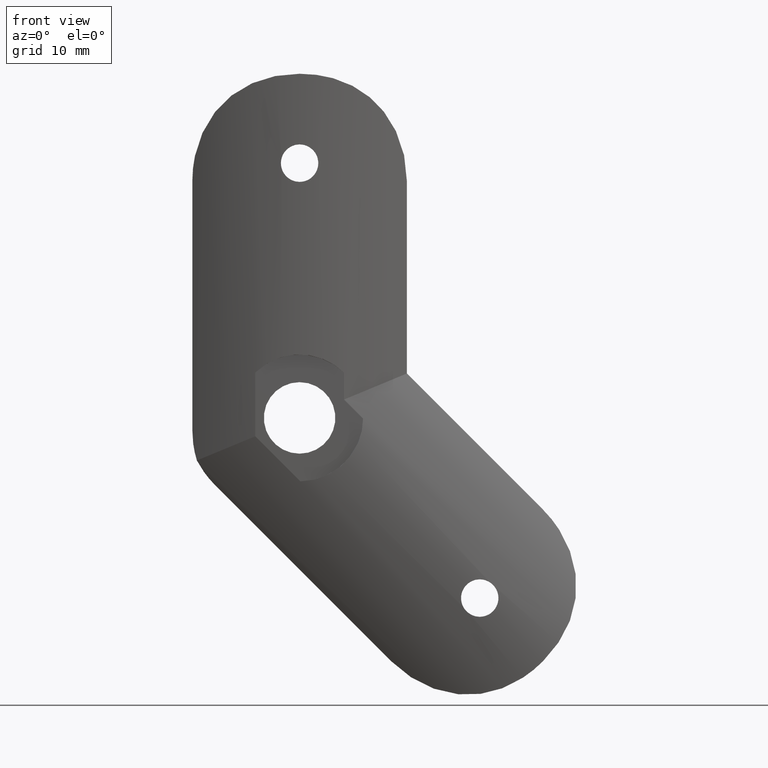
[diagram: clean part render]
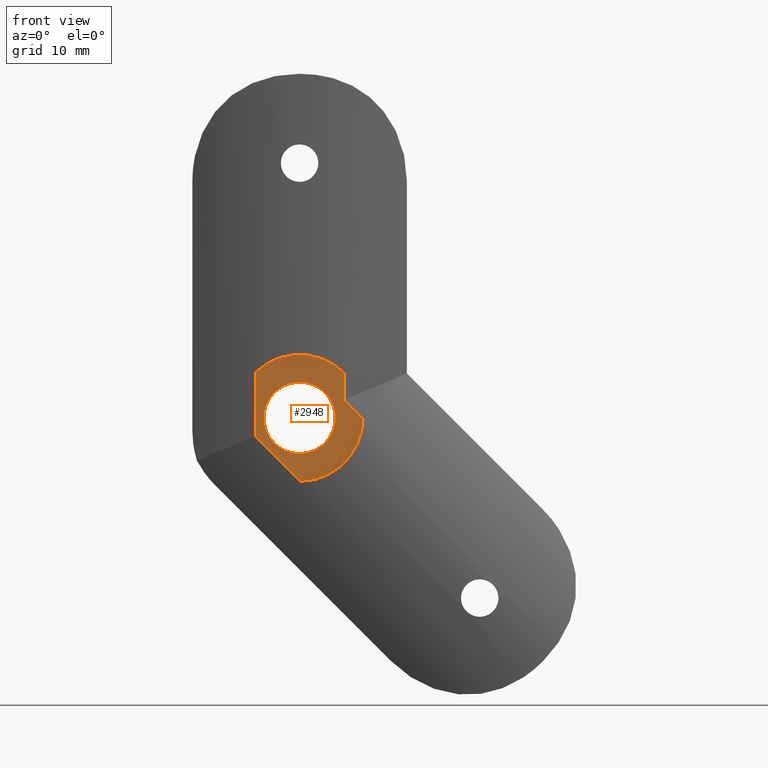
[diagram: same view with one face highlighted and labeled with its STEP entity id]
A machine part, front view. The second image highlights one B-rep face of the part: STEP entity #2948.
In plain terms, the highlighted planar face has unit normal (0, -1, -0).
Its self-contained STEP definition (entity closure, byte-faithful):
#208 = CARTESIAN_POINT ( 'NONE',  ( 0.0000000000000000000, 0.5000000000000004400, 0.0000000000000000000 ) ) ;
#250 = DIRECTION ( 'NONE',  ( 0.0000000000000000000, 0.0000000000000000000, -1.000000000000000000 ) ) ;
#289 = CARTESIAN_POINT ( 'NONE',  ( -4.964876634922575200, 0.5000000000000004400, -24.81928916848295000 ) ) ;
#397 = CARTESIAN_POINT ( 'NONE',  ( 7.099569625293663800, 0.5000000000000000000, -0.07817375267685786100 ) ) ;
#480 = CARTESIAN_POINT ( 'NONE',  ( 4.964876634922571700, 0.5000000000000004400, 2.056519237694225000 ) ) ;
#514 = CARTESIAN_POINT ( 'NONE',  ( 0.07817375267687955200, 0.5000000000000000000, -7.099569625293663800 ) ) ;
#881 = VERTEX_POINT ( 'NONE', #514 ) ;
#1272 = PLANE ( 'NONE',  #2369 ) ;
#1356 = DIRECTION ( 'NONE',  ( 1.224646799147353500E-016, -0.0000000000000000000, 1.000000000000000000 ) ) ;
#1366 = CARTESIAN_POINT ( 'NONE',  ( -4.964876634922572600, 0.5000000000000004400, -2.056519237694228500 ) ) ;
#1733 = ORIENTED_EDGE ( 'NONE', *, *, #7509, .T. ) ;
#1750 = DIRECTION ( 'NONE',  ( 0.0000000000000000000, 0.0000000000000000000, -1.000000000000000000 ) ) ;
#1866 = ORIENTED_EDGE ( 'NONE', *, *, #8109, .F. ) ;
#1871 = ORIENTED_EDGE ( 'NONE', *, *, #9411, .F. ) ;
#1929 = DIRECTION ( 'NONE',  ( -0.7071067811865486800, -0.0000000000000000000, 0.7071067811865464600 ) ) ;
#1954 = AXIS2_PLACEMENT_3D ( 'NONE', #13451, #11382, #5164 ) ;
#1966 = DIRECTION ( 'NONE',  ( -1.224646799147353500E-016, 0.0000000000000000000, -1.000000000000000000 ) ) ;
#2129 = VECTOR ( 'NONE', #1966, 1000.000000000000000 ) ;
#2369 = AXIS2_PLACEMENT_3D ( 'NONE', #11666, #11807, #250 ) ;
#2431 = VECTOR ( 'NONE', #1929, 999.9999999999998900 ) ;
#2604 = ORIENTED_EDGE ( 'NONE', *, *, #7489, .F. ) ;
#2777 = AXIS2_PLACEMENT_3D ( 'NONE', #3360, #7572, #10619 ) ;
#2910 = EDGE_CURVE ( 'NONE', #4969, #9949, #10761, .T. ) ;
#2920 = VERTEX_POINT ( 'NONE', #397 ) ;
#2948 = ADVANCED_FACE ( 'NONE', ( #13011, #11091 ), #1272, .T. ) ;
#3360 = CARTESIAN_POINT ( 'NONE',  ( 0.0000000000000000000, 0.5000000000000000000, 0.0000000000000000000 ) ) ;
#3546 = CARTESIAN_POINT ( 'NONE',  ( 0.0000000000000000000, 0.5000000000000004400, -4.000000000000000000 ) ) ;
#3584 = CARTESIAN_POINT ( 'NONE',  ( -4.964876634922570800, 0.5000000000000000000, 5.075431016179800600 ) ) ;
#3795 = CIRCLE ( 'NONE', #11486, 4.000000000000000000 ) ;
#3889 = ORIENTED_EDGE ( 'NONE', *, *, #11508, .T. ) ;
#3932 = VERTEX_POINT ( 'NONE', #1366 ) ;
#4731 = VERTEX_POINT ( 'NONE', #10222 ) ;
#4742 = LINE ( 'NONE', #289, #7723 ) ;
#4793 = DIRECTION ( 'NONE',  ( -0.0000000000000000000, -1.000000000000000000, -0.0000000000000000000 ) ) ;
#4890 = LINE ( 'NONE', #8313, #2129 ) ;
#4969 = VERTEX_POINT ( 'NONE', #3546 ) ;
#5164 = DIRECTION ( 'NONE',  ( 0.0000000000000000000, 0.0000000000000000000, -1.000000000000000000 ) ) ;
#5943 = CARTESIAN_POINT ( 'NONE',  ( -3.510697936308392100, 0.5000000000000004400, -3.510697936308402800 ) ) ;
#6076 = CARTESIAN_POINT ( 'NONE',  ( 3.510697936308392100, 0.5000000000000004400, 3.510697936308402800 ) ) ;
#6327 = ORIENTED_EDGE ( 'NONE', *, *, #2910, .F. ) ;
#6481 = DIRECTION ( 'NONE',  ( 0.0000000000000000000, 0.0000000000000000000, -1.000000000000000000 ) ) ;
#7099 = ORIENTED_EDGE ( 'NONE', *, *, #11338, .T. ) ;
#7175 = EDGE_LOOP ( 'NONE', ( #6327, #2604 ) ) ;
#7404 = LINE ( 'NONE', #5943, #13347 ) ;
#7489 = EDGE_CURVE ( 'NONE', #9949, #4969, #3795, .T. ) ;
#7509 = EDGE_CURVE ( 'NONE', #3932, #881, #7404, .T. ) ;
#7572 = DIRECTION ( 'NONE',  ( -0.0000000000000000000, -1.000000000000000000, -0.0000000000000000000 ) ) ;
#7723 = VECTOR ( 'NONE', #1356, 1000.000000000000000 ) ;
#7779 = VERTEX_POINT ( 'NONE', #480 ) ;
#8109 = EDGE_CURVE ( 'NONE', #3932, #9817, #4742, .T. ) ;
#8313 = CARTESIAN_POINT ( 'NONE',  ( 4.964876634922568100, 0.5000000000000004400, -24.81928916848295000 ) ) ;
#8477 = ORIENTED_EDGE ( 'NONE', *, *, #12660, .T. ) ;
#8646 = AXIS2_PLACEMENT_3D ( 'NONE', #208, #8742, #6481 ) ;
#8742 = DIRECTION ( 'NONE',  ( -0.0000000000000000000, -1.000000000000000000, -0.0000000000000000000 ) ) ;
#9411 = EDGE_CURVE ( 'NONE', #4731, #7779, #4890, .T. ) ;
#9456 = CARTESIAN_POINT ( 'NONE',  ( 4.898587196589412800E-016, 0.5000000000000004400, 4.000000000000000000 ) ) ;
#9749 = CIRCLE ( 'NONE', #1954, 7.099999999999999600 ) ;
#9817 = VERTEX_POINT ( 'NONE', #3584 ) ;
#9949 = VERTEX_POINT ( 'NONE', #9456 ) ;
#9960 = DIRECTION ( 'NONE',  ( 0.7071067811865486800, 0.0000000000000000000, -0.7071067811865464600 ) ) ;
#10222 = CARTESIAN_POINT ( 'NONE',  ( 4.964876634922572600, 0.5000000000000000000, 5.075431016179798900 ) ) ;
#10619 = DIRECTION ( 'NONE',  ( 0.0000000000000000000, 0.0000000000000000000, -1.000000000000000000 ) ) ;
#10713 = LINE ( 'NONE', #6076, #2431 ) ;
#10761 = CIRCLE ( 'NONE', #8646, 4.000000000000000000 ) ;
#10841 = EDGE_LOOP ( 'NONE', ( #8477, #1871, #3889, #1866, #1733, #7099 ) ) ;
#11091 = FACE_OUTER_BOUND ( 'NONE', #10841, .T. ) ;
#11338 = EDGE_CURVE ( 'NONE', #881, #2920, #9749, .T. ) ;
#11382 = DIRECTION ( 'NONE',  ( -0.0000000000000000000, -1.000000000000000000, -0.0000000000000000000 ) ) ;
#11486 = AXIS2_PLACEMENT_3D ( 'NONE', #12006, #4793, #1750 ) ;
#11508 = EDGE_CURVE ( 'NONE', #4731, #9817, #11520, .T. ) ;
#11520 = CIRCLE ( 'NONE', #2777, 7.099999999999999600 ) ;
#11666 = CARTESIAN_POINT ( 'NONE',  ( 0.0000000000000000000, 0.5000000000000002200, 4.000000000000000000 ) ) ;
#11807 = DIRECTION ( 'NONE',  ( 0.0000000000000000000, -1.000000000000000000, -0.0000000000000000000 ) ) ;
#12006 = CARTESIAN_POINT ( 'NONE',  ( 0.0000000000000000000, 0.5000000000000004400, 0.0000000000000000000 ) ) ;
#12660 = EDGE_CURVE ( 'NONE', #2920, #7779, #10713, .T. ) ;
#13011 = FACE_BOUND ( 'NONE', #7175, .T. ) ;
#13347 = VECTOR ( 'NONE', #9960, 999.9999999999998900 ) ;
#13451 = CARTESIAN_POINT ( 'NONE',  ( 0.0000000000000000000, 0.5000000000000000000, 0.0000000000000000000 ) ) ;